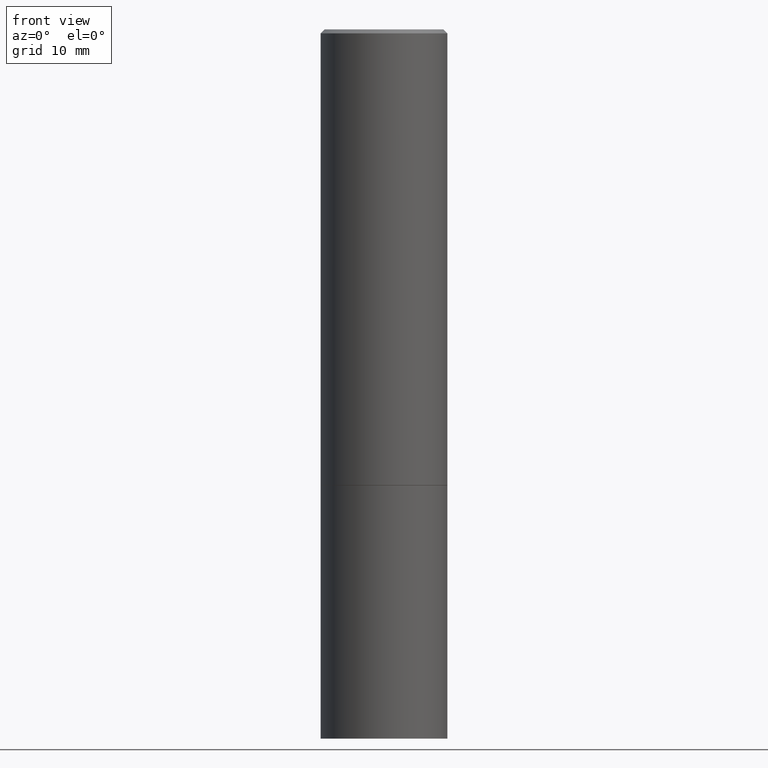
[diagram: clean part render]
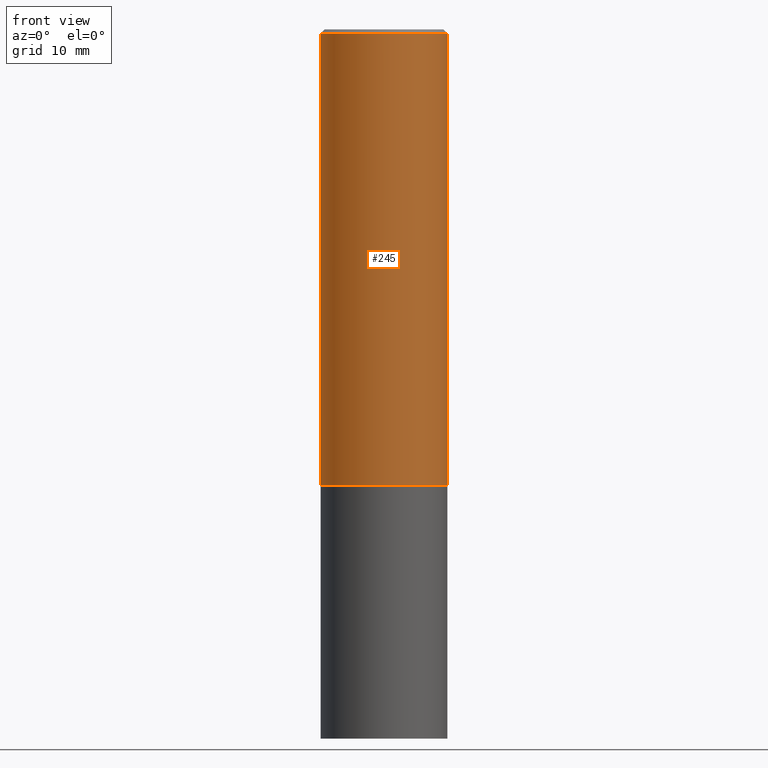
[diagram: same view with one face highlighted and labeled with its STEP entity id]
A machine part, front view. The second image highlights one B-rep face of the part: STEP entity #245.
In plain terms, the highlighted cylindrical surface (partial cylindrical patch) has radius 7.9375 mm, axis along (-0, 0, 1).
Its self-contained STEP definition (entity closure, byte-faithful):
#8 = EDGE_CURVE ( 'NONE', #302, #254, #138, .T. ) ;
#9 = AXIS2_PLACEMENT_3D ( 'NONE', #94, #308, #363 ) ;
#36 = EDGE_CURVE ( 'NONE', #286, #223, #86, .T. ) ;
#51 = DIRECTION ( 'NONE',  ( 1.000000000000000000, -6.982962677686265133E-15, 0.000000000000000000 ) ) ;
#57 = EDGE_LOOP ( 'NONE', ( #321, #324, #347, #238 ) ) ;
#61 = EDGE_CURVE ( 'NONE', #286, #302, #241, .T. ) ;
#63 = DIRECTION ( 'NONE',  ( -2.445468806185136597E-29, 3.491481338843145583E-15, 1.000000000000000000 ) ) ;
#78 = CARTESIAN_POINT ( 'NONE',  ( -0.3125000000000000000, -1.740639529667233725E-15, -2.248999999999999666 ) ) ;
#79 = CARTESIAN_POINT ( 'NONE',  ( 5.499859345110371740E-29, -7.852341531058233864E-15, -2.248999999999999666 ) ) ;
#86 = LINE ( 'NONE', #361, #300 ) ;
#88 = CARTESIAN_POINT ( 'NONE',  ( 0.3124999999999998890, -2.182175836776957558E-15, 1.523805242436229235E-29 ) ) ;
#94 = CARTESIAN_POINT ( 'NONE',  ( 4.890937612370292426E-31, -6.982962677686317493E-17, -0.02000000000000007674 ) ) ;
#112 = CARTESIAN_POINT ( 'NONE',  ( 0.3125000000000000000, -1.003451736783519063E-14, -2.248999999999999666 ) ) ;
#138 = LINE ( 'NONE', #88, #252 ) ;
#171 = DIRECTION ( 'NONE',  ( -2.445468806185136877E-29, 3.491481338843145188E-15, 1.000000000000000000 ) ) ;
#176 = DIRECTION ( 'NONE',  ( 1.000000000000000000, -6.982962677686266711E-15, 4.876176775795935232E-29 ) ) ;
#208 = AXIS2_PLACEMENT_3D ( 'NONE', #317, #63, #176 ) ;
#223 = VERTEX_POINT ( 'NONE', #270 ) ;
#238 = ORIENTED_EDGE ( 'NONE', *, *, #285, .F. ) ;
#241 = CIRCLE ( 'NONE', #322, 0.3125000000000000000 ) ;
#245 = ADVANCED_FACE ( 'NONE', ( #341 ), #271, .T. ) ;
#252 = VECTOR ( 'NONE', #281, 39.37007874015748143 ) ;
#254 = VERTEX_POINT ( 'NONE', #343 ) ;
#270 = CARTESIAN_POINT ( 'NONE',  ( -0.3124999999999997224, 2.112346210000093471E-15, -0.02000000000000007674 ) ) ;
#271 = CYLINDRICAL_SURFACE ( 'NONE', #208, 0.3124999999999998890 ) ;
#281 = DIRECTION ( 'NONE',  ( -2.445468806185136877E-29, 3.491481338843145188E-15, 1.000000000000000000 ) ) ;
#285 = EDGE_CURVE ( 'NONE', #223, #254, #348, .T. ) ;
#286 = VERTEX_POINT ( 'NONE', #78 ) ;
#300 = VECTOR ( 'NONE', #171, 39.37007874015748143 ) ;
#302 = VERTEX_POINT ( 'NONE', #112 ) ;
#308 = DIRECTION ( 'NONE',  ( -2.445468806185136597E-29, 3.491481338843145583E-15, 1.000000000000000000 ) ) ;
#317 = CARTESIAN_POINT ( 'NONE',  ( 0.000000000000000000, 0.000000000000000000, 0.000000000000000000 ) ) ;
#321 = ORIENTED_EDGE ( 'NONE', *, *, #36, .F. ) ;
#322 = AXIS2_PLACEMENT_3D ( 'NONE', #79, #354, #51 ) ;
#324 = ORIENTED_EDGE ( 'NONE', *, *, #61, .T. ) ;
#341 = FACE_OUTER_BOUND ( 'NONE', #57, .T. ) ;
#343 = CARTESIAN_POINT ( 'NONE',  ( 0.3124999999999997224, -2.213735251080464939E-15, -0.02000000000000007674 ) ) ;
#347 = ORIENTED_EDGE ( 'NONE', *, *, #8, .T. ) ;
#348 = CIRCLE ( 'NONE', #9, 0.3124999999999997224 ) ;
#354 = DIRECTION ( 'NONE',  ( -2.445468806185136597E-29, 3.491481338843145583E-15, 1.000000000000000000 ) ) ;
#361 = CARTESIAN_POINT ( 'NONE',  ( -0.3124999999999998890, 2.220446049250312292E-15, -1.537167215704657391E-29 ) ) ;
#363 = DIRECTION ( 'NONE',  ( 1.000000000000000000, -6.982962677686266711E-15, 0.000000000000000000 ) ) ;